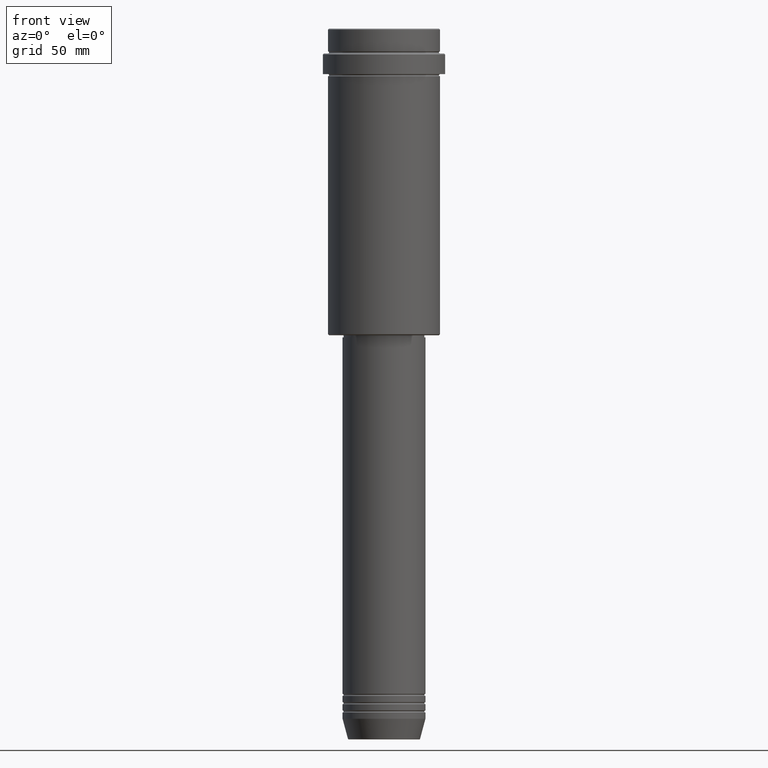
[diagram: clean part render]
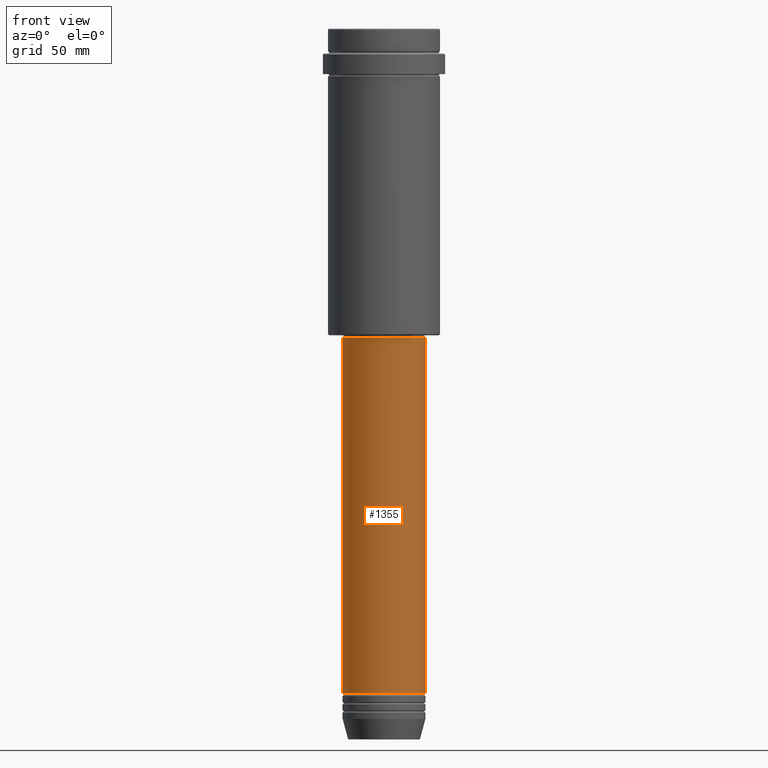
[diagram: same view with one face highlighted and labeled with its STEP entity id]
A machine part, front view. The second image highlights one B-rep face of the part: STEP entity #1355.
In plain terms, the highlighted cylindrical surface (partial cylindrical patch) has radius 20 mm, axis along (-0, -0, 1).
Its self-contained STEP definition (entity closure, byte-faithful):
#58 = VERTEX_POINT ( 'NONE', #678 ) ;
#90 = VERTEX_POINT ( 'NONE', #1364 ) ;
#129 = EDGE_CURVE ( 'NONE', #748, #785, #1171, .T. ) ;
#133 = VECTOR ( 'NONE', #818, 1000.000000000000000 ) ;
#220 = DIRECTION ( 'NONE',  ( 1.000000000000000000, 0.000000000000000000, 0.000000000000000000 ) ) ;
#276 = AXIS2_PLACEMENT_3D ( 'NONE', #632, #391, #529 ) ;
#280 = EDGE_LOOP ( 'NONE', ( #1346, #306, #1058, #731 ) ) ;
#303 = EDGE_CURVE ( 'NONE', #58, #748, #1362, .T. ) ;
#306 = ORIENTED_EDGE ( 'NONE', *, *, #358, .T. ) ;
#358 = EDGE_CURVE ( 'NONE', #58, #90, #1238, .T. ) ;
#391 = DIRECTION ( 'NONE',  ( -0.000000000000000000, -0.000000000000000000, 1.000000000000000000 ) ) ;
#397 = DIRECTION ( 'NONE',  ( -0.000000000000000000, -0.000000000000000000, 1.000000000000000000 ) ) ;
#408 = CYLINDRICAL_SURFACE ( 'NONE', #276, 20.00000000000000000 ) ;
#449 = CARTESIAN_POINT ( 'NONE',  ( 20.00000000000000000, 0.000000000000000000, -148.9999999999999432 ) ) ;
#529 = DIRECTION ( 'NONE',  ( 1.000000000000000000, 0.000000000000000000, 0.000000000000000000 ) ) ;
#560 = CARTESIAN_POINT ( 'NONE',  ( -20.00000000000000000, 2.449293598294706513E-15, 0.000000000000000000 ) ) ;
#605 = DIRECTION ( 'NONE',  ( -0.000000000000000000, -0.000000000000000000, 1.000000000000000000 ) ) ;
#613 = DIRECTION ( 'NONE',  ( 1.000000000000000000, 0.000000000000000000, 0.000000000000000000 ) ) ;
#620 = FACE_OUTER_BOUND ( 'NONE', #280, .T. ) ;
#632 = CARTESIAN_POINT ( 'NONE',  ( 0.000000000000000000, 0.000000000000000000, 0.000000000000000000 ) ) ;
#658 = AXIS2_PLACEMENT_3D ( 'NONE', #1163, #605, #613 ) ;
#660 = AXIS2_PLACEMENT_3D ( 'NONE', #767, #773, #220 ) ;
#678 = CARTESIAN_POINT ( 'NONE',  ( -20.00000000000000000, 2.449293598294706513E-15, -320.9999999999998863 ) ) ;
#731 = ORIENTED_EDGE ( 'NONE', *, *, #129, .F. ) ;
#748 = VERTEX_POINT ( 'NONE', #1337 ) ;
#767 = CARTESIAN_POINT ( 'NONE',  ( 0.000000000000000000, 0.000000000000000000, -320.9999999999998863 ) ) ;
#773 = DIRECTION ( 'NONE',  ( -0.000000000000000000, -0.000000000000000000, 1.000000000000000000 ) ) ;
#785 = VERTEX_POINT ( 'NONE', #449 ) ;
#818 = DIRECTION ( 'NONE',  ( -0.000000000000000000, -0.000000000000000000, 1.000000000000000000 ) ) ;
#978 = LINE ( 'NONE', #1408, #1043 ) ;
#1043 = VECTOR ( 'NONE', #397, 1000.000000000000000 ) ;
#1058 = ORIENTED_EDGE ( 'NONE', *, *, #1409, .T. ) ;
#1163 = CARTESIAN_POINT ( 'NONE',  ( 0.000000000000000000, 0.000000000000000000, -148.9999999999999432 ) ) ;
#1171 = CIRCLE ( 'NONE', #658, 20.00000000000000000 ) ;
#1238 = CIRCLE ( 'NONE', #660, 20.00000000000000000 ) ;
#1337 = CARTESIAN_POINT ( 'NONE',  ( -20.00000000000000000, 2.449293598294706513E-15, -148.9999999999999432 ) ) ;
#1346 = ORIENTED_EDGE ( 'NONE', *, *, #303, .F. ) ;
#1355 = ADVANCED_FACE ( 'NONE', ( #620 ), #408, .T. ) ;
#1362 = LINE ( 'NONE', #560, #133 ) ;
#1364 = CARTESIAN_POINT ( 'NONE',  ( 20.00000000000000000, 0.000000000000000000, -320.9999999999998863 ) ) ;
#1408 = CARTESIAN_POINT ( 'NONE',  ( 20.00000000000000000, 0.000000000000000000, 0.000000000000000000 ) ) ;
#1409 = EDGE_CURVE ( 'NONE', #90, #785, #978, .T. ) ;